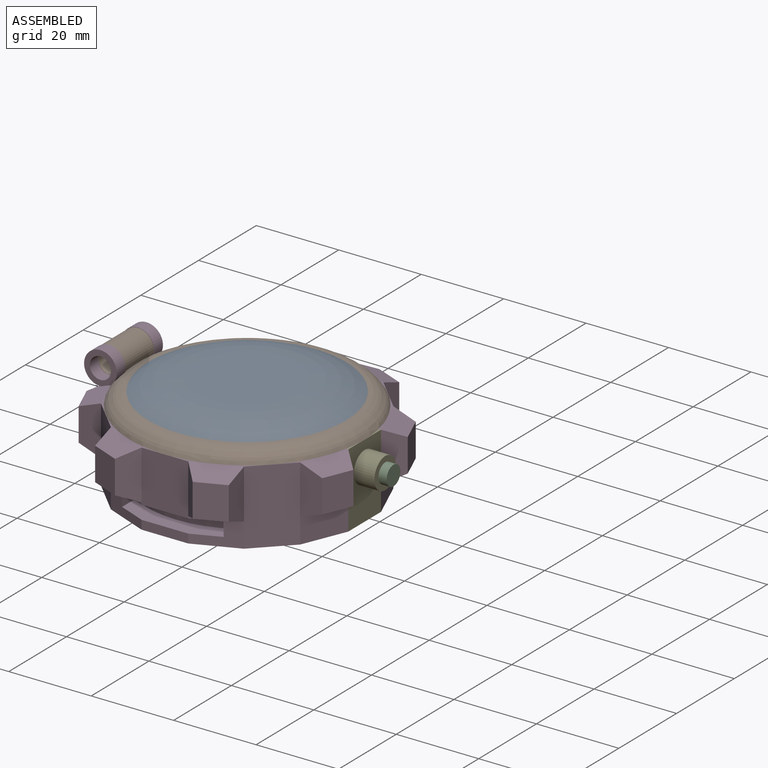
[diagram: assembled view]
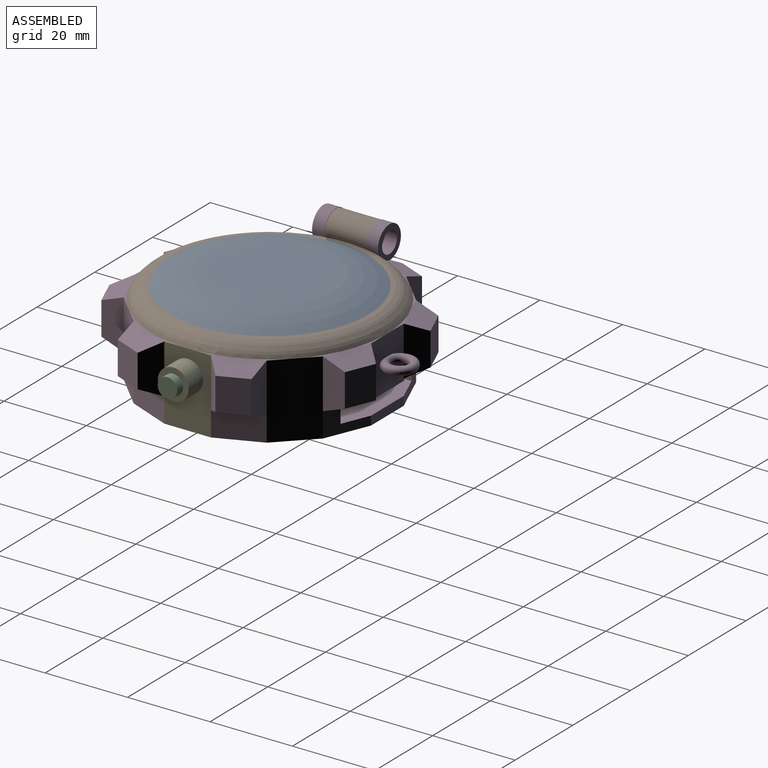
[diagram: assembled view, second angle]
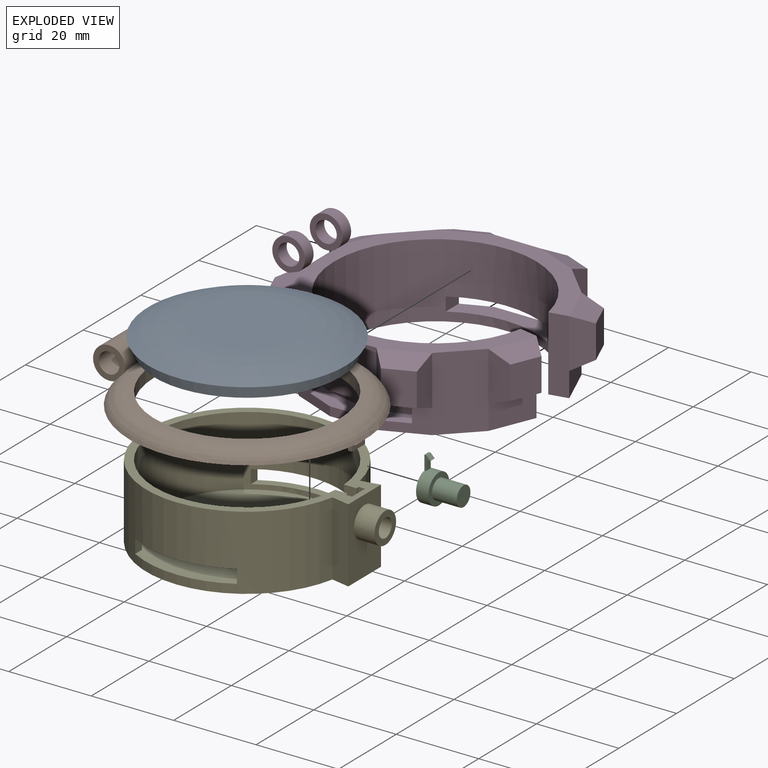
[diagram: exploded view]
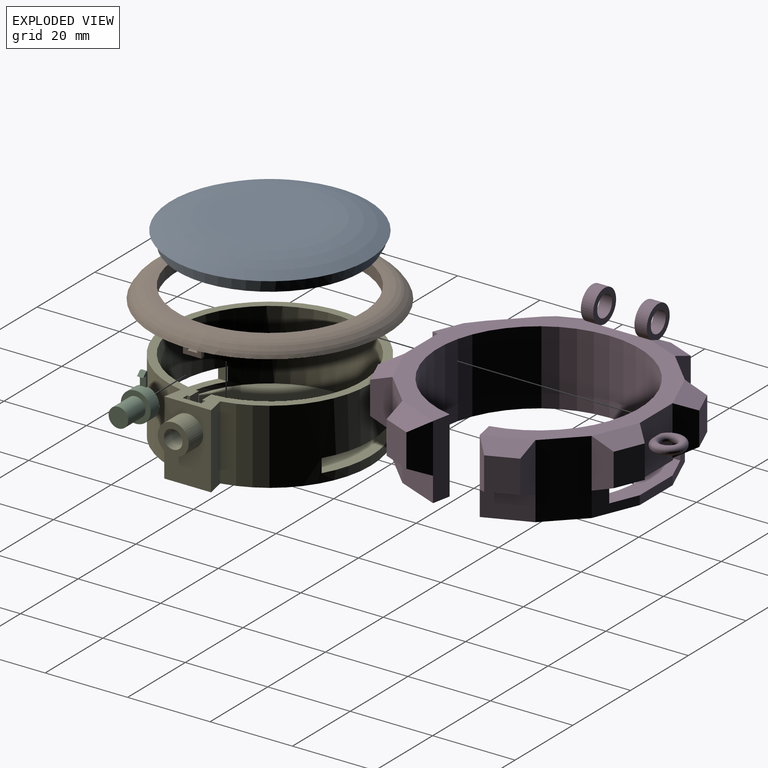
[diagram: exploded view, second angle]
ASSEMBLY  parts=5 mates=4
PART A: 5 faces, bbox 48x48x6 mm
  f0: plane 25.28x25.28mm, normal (0,0,1), area 502.1mm2, adj f4
  f1: plane 48x48mm, normal (0,0,-1), area 219.1mm2, adj f2,f4
  f2: cylinder r=22.5mm len=45mm, axis (0,0,1), area 424.1mm2, adj f1,f3
  f3: cone r=22.5mm half-angle=79.9deg, axis (0,0,-1), area 1615.4mm2, adj f2
  f4: torus R=12.64mm, axis (0,0,-1), area 1377.1mm2, adj f0,f1
PART B: 24 faces, bbox 62.7x65.3x9.3 mm
  f0: plane 57x56.13mm, normal (0,0,-1), area 939mm2, adj f1,f2,f3,f5,f6,f8,f9,f11
  f1: torus R=23.92mm, axis (0,0,-1), area 910.5mm2, adj f0,f2,f4,f13,f14,f15,f17,f19
  f2: torus R=23.92mm, axis (0,0,-1), area 0.5mm2, adj f0,f1,f18
  f3: cylinder r=22.5mm len=45mm, axis (0,0,-1), area 424.1mm2, adj f0,f4
  f4: plane 47.84x47.84mm, normal (0,0,1), area 206.7mm2, adj f1,f3
  f5: plane 2.25x1mm, normal (1,0,0), area 2.3mm2, adj f0,f10,f11,f12
  f6: plane 3x2.25mm, normal (-1,0,0), area 4.2mm2, adj f0,f7,f11,f12,f21,f22,f23
  f7: plane 2.5x1mm, normal (0,0,1), area 2.5mm2, adj f6,f8,f11,f12
  f8: plane 3x2.25mm, normal (1,0,0), area 4.2mm2, adj f0,f7,f11,f12,f21,f22,f23
  f9: plane 2.25x1mm, normal (-1,0,0), area 2.3mm2, adj f0,f10,f11,f12
  f10: plane 4.5x1mm, normal (0,0,-1), area 4.5mm2, adj f5,f9,f11,f12
  f11: plane 4.5x2.25mm, normal (0,-1,0), area 7mm2, adj f0,f5,f6,f7,f8,f9,f10
  f12: plane 4.5x2.25mm, normal (0,1,0), area 7mm2, adj f0,f5,f6,f7,f8,f9,f10
  f13: cylinder r=3.88mm len=10mm, axis (1,0,0), area 215.7mm2, adj f0,f1,f14,f15
  f14: plane 8.23x7.77mm, normal (-1,0,0), area 29.1mm2, adj f0,f1,f13,f16,f17
  f15: plane 8.23x7.77mm, normal (1,0,0), area 29.1mm2, adj f0,f1,f13,f16,f19
  f16: cylinder r=2.5mm len=10mm, axis (1,0,0), area 157.1mm2, adj f14,f15
  f17: cylinder r=4.38mm len=3.5mm, axis (1,0,0), area 8.9mm2, adj f0,f1,f14,f18
  f18: plane 1.88x1.48mm, normal (1,0,0), area 0.7mm2, adj f0,f2,f17
  f19: cylinder r=4.38mm len=3.5mm, axis (-1,0,0), area 8.9mm2, adj f0,f1,f15,f20
  f20: plane 1.88x1.48mm, normal (-1,0,0), area 0.7mm2, adj f0,f1,f19
  f21: plane 3x2.5mm, normal (0,0,-1), area 7.5mm2, adj f6,f8,f22,f23
  f22: plane 2.5x1mm, normal (0,1,0), area 2.5mm2, adj f0,f6,f8,f21
  f23: plane 2.5x1mm, normal (0,-1,0), area 2.5mm2, adj f0,f6,f8,f21
PART C: 13 faces, bbox 7.3x9x10.6 mm
  f0: cylinder r=2.38mm len=4.75mm, axis (0,1,0), area 29.8mm2, adj f3,f4
  f1: cylinder r=3.62mm len=7.25mm, axis (0,1,0), area 67.6mm2, adj f2,f3,f7,f8,f12
  f2: plane 7.25x7.25mm, normal (0,-1,0), area 23.6mm2, adj f1,f5
  f3: plane 10.63x7.25mm, normal (0,1,0), area 28.7mm2, adj f0,f1,f7,f8,f9
  f4: plane 4.75x4.75mm, normal (0,1,0), area 17.7mm2, adj f0
  f5: cylinder r=2.38mm len=6mm, axis (0,1,0), area 89.5mm2, adj f2,f6
  f6: plane 4.75x4.75mm, normal (0,-1,0), area 17.7mm2, adj f5
  f7: plane 3.45x1.5mm, normal (1,0,0), area 2.2mm2, adj f1,f3,f9,f10,f11,f12
  f8: plane 3.45x1.5mm, normal (-1,0,0), area 2.2mm2, adj f1,f3,f9,f10,f11,f12
  f9: plane 1.5x0.5mm, normal (0,0,1), area 0.8mm2, adj f3,f7,f8,f10
  f10: plane 1.5x1mm, normal (0,-0.71,0.71), area 2.1mm2, adj f7,f8,f9,f11
  f11: plane 1.5x1mm, normal (0,0,-1), area 1.5mm2, adj f7,f8,f10,f12
  f12: plane 2.45x1.5mm, normal (0,-1,0), area 3.6mm2, adj f1,f7,f8,f11
PART D: 88 faces, bbox 66.4x68.2x25.1 mm
  f0: plane 17.41x11.34mm, normal (-1,0,0), area 197.4mm2, adj f1,f81,f82,f83,f84,f85,f86,f87
  f1: cylinder r=3.97mm len=7.93mm, axis (0,1,0), area 68.7mm2, adj f0,f2,f4,f79,f80,f81
  f2: plane 7.93x7.93mm, normal (0,-1,0), area 28.1mm2, adj f1,f3,f4,f80
  f3: cylinder r=2.58mm len=5.16mm, axis (0,1,0), area 48.6mm2, adj f2,f79
  f4: plane 8.91x8.22mm, normal (-0.34,-0.14,0.93), area 46.4mm2, adj f1,f2,f5,f78,f80,f81
  f5: plane 12x5.38mm, normal (0.01,-1,0), area 53.9mm2, adj f4,f6,f77,f78
  f6: plane 18x8.02mm, normal (-0.71,-0.71,0), area 204.1mm2, adj f5,f7,f76,f80,f82,f83
  f7: plane 12x5.38mm, normal (-1,0.01,0), area 53.9mm2, adj f6,f8,f74,f75
  f8: plane 10.54x8.19mm, normal (-0.14,-0.34,0.93), area 50.3mm2, adj f7,f9,f74,f80
  f9: plane 12x3.85mm, normal (0.72,-0.7,0), area 53.9mm2, adj f8,f10,f74,f75
  f10: plane 12.52x11.34mm, normal (0,-1,0), area 142mm2, adj f9,f11,f67,f73,f76,f80
  f11: plane 12x3.85mm, normal (-0.72,-0.7,0), area 53.9mm2, adj f10,f12,f65,f66
  f12: plane 10.54x8.19mm, normal (0.14,-0.34,0.93), area 50.3mm2, adj f11,f13,f65,f80
  f13: plane 12x5.38mm, normal (1,0.01,0), area 53.9mm2, adj f12,f14,f65,f66
  f14: plane 18x8.02mm, normal (0.71,-0.71,0), area 204.1mm2, adj f13,f15,f64,f67,f80,f83
  f15: plane 12x5.38mm, normal (-0.01,-1,0), area 53.9mm2, adj f14,f16,f62,f63
  f16: plane 10.54x8.19mm, normal (0.34,-0.14,0.93), area 50.3mm2, adj f15,f17,f62,f80
  f17: plane 12x3.85mm, normal (0.7,0.72,0), area 53.9mm2, adj f16,f18,f62,f63
  f18: plane 18x4.47mm, normal (0.2,0.98,0), area 82.1mm2, adj f17,f19,f64,f80,f83
  f19: cylinder r=24.5mm len=49mm, axis (0,0,-1), area 2512.2mm2, adj f18,f20,f58,f59,f60,f61,f80,f83
  f20: plane 24.63x7.32mm, normal (0,0,1), area 106.7mm2, adj f19,f21,f56,f57,f58,f60
  f21: plane 10.48x6mm, normal (-0.38,0.92,0), area 44.2mm2, adj f20,f22,f47,f48,f56,f58,f59,f83
  f22: plane 12.52x11.34mm, normal (0,1,0), area 132.5mm2, adj f21,f23,f35,f39,f43,f44,f45,f46
  f23: plane 12x3.85mm, normal (-0.72,0.7,0), area 53.9mm2, adj f22,f24,f33,f34
  f24: plane 8x6.78mm, normal (0.38,0.92,0), area 58.7mm2, adj f23,f25,f33,f34
  f25: plane 12x5.38mm, normal (1,-0.01,0), area 53.9mm2, adj f24,f26,f33,f34
  f26: plane 18x8.02mm, normal (0.71,0.71,0), area 204.1mm2, adj f25,f27,f32,f57,f80,f83
  f27: plane 10.48x6mm, normal (0.92,0.38,0), area 68mm2, adj f26,f28,f61,f83
  f28: plane 10.54x8.19mm, normal (0.34,0.14,-0.93), area 50.3mm2, adj f27,f29,f31,f32
  f29: plane 8x6.78mm, normal (0.92,0.38,0), area 58.7mm2, adj f28,f30,f31,f32
  f30: plane 10.54x8.19mm, normal (0.34,0.14,0.93), area 50.3mm2, adj f29,f31,f32,f80
  f31: plane 12x3.85mm, normal (0.7,-0.72,0), area 53.9mm2, adj f28,f29,f30,f61
  f32: plane 12x5.38mm, normal (-0.01,1,0), area 53.9mm2, adj f26,f28,f29,f30
  f33: plane 10.54x8.19mm, normal (0.14,0.34,0.93), area 50.3mm2, adj f23,f24,f25,f80
  f34: plane 10.54x8.19mm, normal (0.14,0.34,-0.93), area 50.3mm2, adj f23,f24,f25,f57
  f35: plane 12x3.85mm, normal (0.72,0.7,0), area 53.9mm2, adj f22,f36,f38,f47
  f36: plane 10.54x8.19mm, normal (-0.14,0.34,0.93), area 50.3mm2, adj f35,f37,f38,f80
  f37: plane 12x5.38mm, normal (-1,-0.01,0), area 53.9mm2, adj f36,f38,f47,f48
  f38: plane 8x6.78mm, normal (-0.38,0.92,0), area 58.7mm2, adj f35,f36,f37,f47
  f39: plane 6.2x6.1mm, normal (0,0,-1), area 3.7mm2, adj f22,f40,f43
  f40: torus R=2.9mm, axis (0,0,1), area 20.7mm2, adj f39,f41
  f41: cylinder r=2mm len=4mm, axis (0,0,-1), area 2.5mm2, adj f40,f42
  f42: torus R=2.9mm, axis (0,0,1), area 20.7mm2, adj f41,f46
  f43: torus R=3.1mm, axis (0,0,1), area 26.4mm2, adj f22,f39,f44
  f44: cylinder r=4mm len=8mm, axis (0,0,-1), area 3.9mm2, adj f22,f43,f45
  f45: torus R=3.1mm, axis (0,0,1), area 26.4mm2, adj f22,f44,f46
  f46: plane 6.2x6.1mm, normal (0,0,1), area 3.7mm2, adj f22,f42,f45
  f47: plane 10.54x8.19mm, normal (-0.14,0.34,-0.93), area 50.3mm2, adj f21,f35,f37,f38
  f48: plane 18x8.02mm, normal (-0.71,0.71,0), area 204.1mm2, adj f21,f37,f49,f80,f83,f84
  f49: plane 12x5.38mm, normal (0.01,1,0), area 53.9mm2, adj f48,f50,f54,f55
  f50: plane 8.91x8.22mm, normal (-0.34,0.14,0.93), area 46.4mm2, adj f49,f51,f54,f80,f85,f86
  f51: plane 7.93x7.93mm, normal (0,1,0), area 28.1mm2, adj f50,f52,f80,f86
  f52: cylinder r=2.58mm len=5.16mm, axis (0,-1,0), area 48.6mm2, adj f51,f53
  f53: plane 7.93x7.93mm, normal (0,-1,0), area 28.5mm2, adj f52,f86,f87
  f54: plane 8x6.78mm, normal (-0.92,0.38,0), area 58.7mm2, adj f49,f50,f55,f85
  f55: plane 10.54x8.19mm, normal (-0.34,0.14,-0.93), area 50.3mm2, adj f49,f54,f84,f85
  f56: plane 11.34x2.17mm, normal (0,1,0), area 24.5mm2, adj f20,f21,f57,f83
  f57: plane 10.48x6mm, normal (0.38,0.92,0), area 44.2mm2, adj f20,f22,f26,f34,f56,f59,f60,f83
  f58: plane 4.57x3.31mm, normal (1,0,0), area 15.1mm2, adj f19,f20,f21,f59
  f59: plane 24.63x7.32mm, normal (0,0,-1), area 106.7mm2, adj f19,f21,f22,f57,f58,f60
  f60: plane 4.57x3.31mm, normal (-1,0,0), area 15.1mm2, adj f19,f20,f57,f59
  f61: plane 18x4.47mm, normal (0.2,-0.98,0), area 82.1mm2, adj f19,f27,f31,f80,f83
  f62: plane 8x6.78mm, normal (0.92,-0.38,0), area 58.7mm2, adj f15,f16,f17,f63
  f63: plane 10.54x8.19mm, normal (0.34,-0.14,-0.93), area 50.3mm2, adj f15,f17,f62,f64
  f64: plane 10.48x6mm, normal (0.92,-0.38,0), area 68mm2, adj f14,f18,f63,f83
  f65: plane 8x6.78mm, normal (0.38,-0.92,0), area 58.7mm2, adj f11,f12,f13,f66
  f66: plane 10.54x8.19mm, normal (0.14,-0.34,-0.93), area 50.3mm2, adj f11,f13,f65,f67
  f67: plane 10.48x6mm, normal (0.38,-0.92,0), area 44.2mm2, adj f10,f14,f66,f68,f69,f72,f73,f83
  f68: plane 11.34x2.17mm, normal (0,-1,0), area 24.5mm2, adj f67,f69,f76,f83
  f69: plane 24.63x7.32mm, normal (0,0,1), area 106.7mm2, adj f67,f68,f70,f71,f72,f76
  f70: plane 4.57x3.31mm, normal (1,0,0), area 15.1mm2, adj f69,f71,f73,f76
  f71: cylinder r=24.5mm len=24.63mm, axis (0,0,-1), area 85.5mm2, adj f69,f70,f72,f73
  f72: plane 4.57x3.31mm, normal (-1,0,0), area 15.1mm2, adj f67,f69,f71,f73
  f73: plane 24.63x7.32mm, normal (0,0,-1), area 106.7mm2, adj f10,f67,f70,f71,f72,f76
  f74: plane 8x6.78mm, normal (-0.38,-0.92,0), area 58.7mm2, adj f7,f8,f9,f75
  f75: plane 10.54x8.19mm, normal (-0.14,-0.34,-0.93), area 50.3mm2, adj f7,f9,f74,f76
  f76: plane 10.48x6mm, normal (-0.38,-0.92,0), area 44.2mm2, adj f6,f10,f68,f69,f70,f73,f75,f83
  f77: plane 10.54x8.19mm, normal (-0.34,-0.14,-0.93), area 50.3mm2, adj f5,f78,f81,f82
  f78: plane 8x6.78mm, normal (-0.92,-0.38,0), area 58.7mm2, adj f4,f5,f77,f81
  f79: plane 7.93x7.93mm, normal (0,1,0), area 28.5mm2, adj f1,f3,f87
  f80: plane 57x56.03mm, normal (0,0,1), area 641.9mm2, adj f1,f2,f4,f6,f8,f10,f12,f14
  f81: plane 11.44x3.89mm, normal (-0.7,0.72,0), area 53mm2, adj f0,f1,f4,f77,f78
  f82: plane 10.48x6mm, normal (-0.92,-0.38,0), area 68mm2, adj f0,f6,f77,f83
  f83: plane 57x57mm, normal (0,0,-1), area 655.6mm2, adj f0,f6,f14,f18,f19,f21,f26,f27
  f84: plane 10.48x6mm, normal (-0.92,0.38,0), area 68mm2, adj f0,f48,f55,f83
  f85: plane 11.44x3.89mm, normal (-0.7,-0.72,0), area 53mm2, adj f0,f50,f54,f55,f86
  f86: cylinder r=3.97mm len=7.93mm, axis (0,-1,0), area 68.7mm2, adj f0,f50,f51,f53,f80,f85
  f87: cylinder r=3.97mm len=10mm, axis (0,-1,0), area 11.7mm2, adj f0,f53,f79,f80
PART E: 28 faces, bbox 58x49x18 mm
  f0: cylinder r=24.5mm len=49mm, axis (0,0,1), area 2426.6mm2, adj f2,f3,f5,f6,f16,f17,f18,f19
  f1: cylinder r=22.5mm len=45mm, axis (0,0,1), area 2192.8mm2, adj f2,f7,f9,f10,f15,f16,f17,f18
  f2: plane 53x49mm, normal (0,0,1), area 323.2mm2, adj f0,f1,f3,f4,f5,f8,f9,f10
  f3: plane 18x4.47mm, normal (-0.2,-0.98,0), area 82.1mm2, adj f0,f2,f4,f6
  f4: plane 18x11.34mm, normal (1,0,0), area 159.9mm2, adj f2,f3,f5,f6,f25
  f5: plane 18x4.47mm, normal (-0.2,0.98,0), area 82.1mm2, adj f0,f2,f4,f6
  f6: plane 53x49mm, normal (0,0,-1), area 1929.4mm2, adj f0,f3,f4,f5
  f7: cylinder r=3mm len=6.2mm, axis (1,0,0), area 97.9mm2, adj f1,f8,f9,f10,f11,f12,f13,f14
  f8: plane 4.02x0.78mm, normal (1,0,0), area 2.9mm2, adj f2,f7,f9,f14
  f9: plane 3.39x3.05mm, normal (0,-1,0), area 10.3mm2, adj f1,f2,f7,f8
  f10: plane 3.42x3.05mm, normal (0,1,0), area 10.4mm2, adj f1,f2,f7,f11
  f11: plane 4.02x0.72mm, normal (1,0,0), area 2.7mm2, adj f2,f7,f10,f12
  f12: plane 4.02x1.5mm, normal (0,1,0), area 6mm2, adj f2,f7,f11,f13
  f13: plane 4.5x4.02mm, normal (-1,0,0), area 14.9mm2, adj f2,f7,f12,f14
  f14: plane 4.02x1.5mm, normal (0,-1,0), area 6mm2, adj f2,f7,f8,f13
  f15: plane 45x45mm, normal (0,0,1), area 1590.4mm2, adj f1
  f16: plane 3.31x2.35mm, normal (1,0,0), area 7.8mm2, adj f0,f1,f17,f19
  f17: plane 24.63x5.67mm, normal (0,0,-1), area 51.9mm2, adj f0,f1,f16,f18
  f18: plane 3.31x2.35mm, normal (-1,0,0), area 7.8mm2, adj f0,f1,f17,f19
  f19: plane 24.63x5.67mm, normal (0,0,1), area 51.9mm2, adj f0,f1,f16,f18
  f20: plane 24.63x5.67mm, normal (0,0,1), area 51.9mm2, adj f0,f1,f21,f23
  f21: plane 3.31x2.35mm, normal (-1,0,0), area 7.8mm2, adj f0,f1,f20,f22
  f22: plane 24.63x5.67mm, normal (0,0,-1), area 51.9mm2, adj f0,f1,f21,f23
  f23: plane 3.31x2.35mm, normal (1,0,0), area 7.8mm2, adj f0,f1,f20,f22
  f24: cylinder r=2.25mm len=5mm, axis (-1,0,0), area 70.7mm2, adj f26,f27
  f25: cylinder r=3.75mm len=7.5mm, axis (-1,0,0), area 117.8mm2, adj f4,f26
  f26: plane 7.5x7.5mm, normal (1,0,0), area 28.3mm2, adj f24,f25
  f27: plane 6x6mm, normal (-1,0,0), area 12.4mm2, adj f7,f24
PLACE A rot(axis=(0.68,-0.66,0.33),0deg) t=(-14.32,-5.51,1.85)mm
PLACE B rot(axis=(0,0,1),90deg) t=(-14.32,-5.51,1.85)mm
PLACE C rot(axis=(0,0,1),90deg) t=(14.18,-5.51,-4.15)mm
PLACE D rot(axis=(0.68,-0.66,0.33),0deg) t=(-14.32,-5.51,-4.15)mm fixed
PLACE E rot(axis=(0.68,-0.66,0.33),0deg) t=(-14.32,-5.51,-4.15)mm
MATE revolute B.f13 <-> D.f1  axis (0,1,0) through (-44.32,-5.51,4.93)mm
MATE slider C.f0 <-> E.f24  axis (1,0,0) through (15.18,-5.51,-4.15)mm
MATE fastened A.f2 <-> B.f1  axis (0,0,-1) through (-14.32,-5.51,4.85)mm
MATE slider E.f0 <-> D.f19  axis (0,0,1) through (-14.32,-5.51,-11.15)mm
